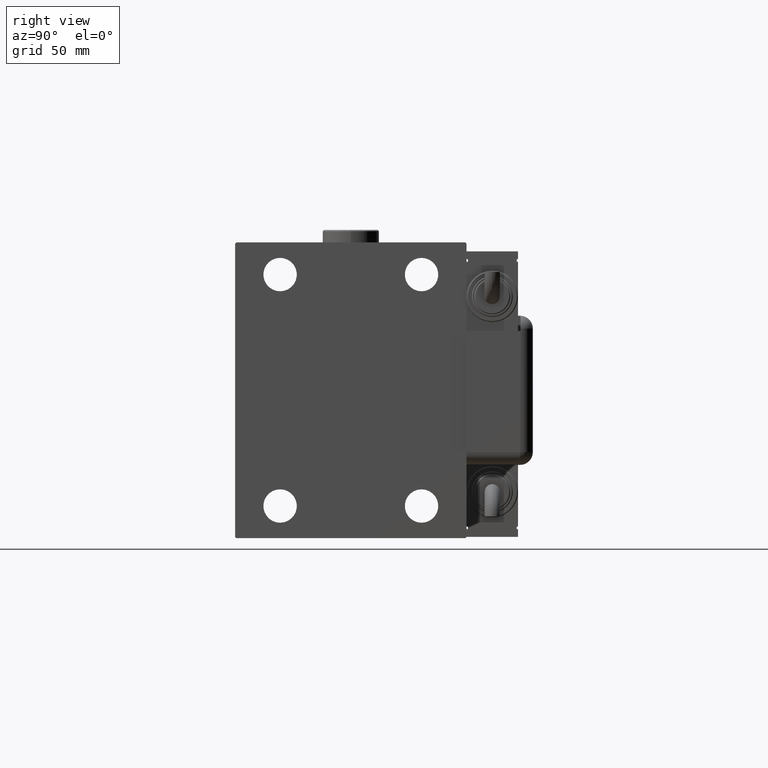
[diagram: clean part render]
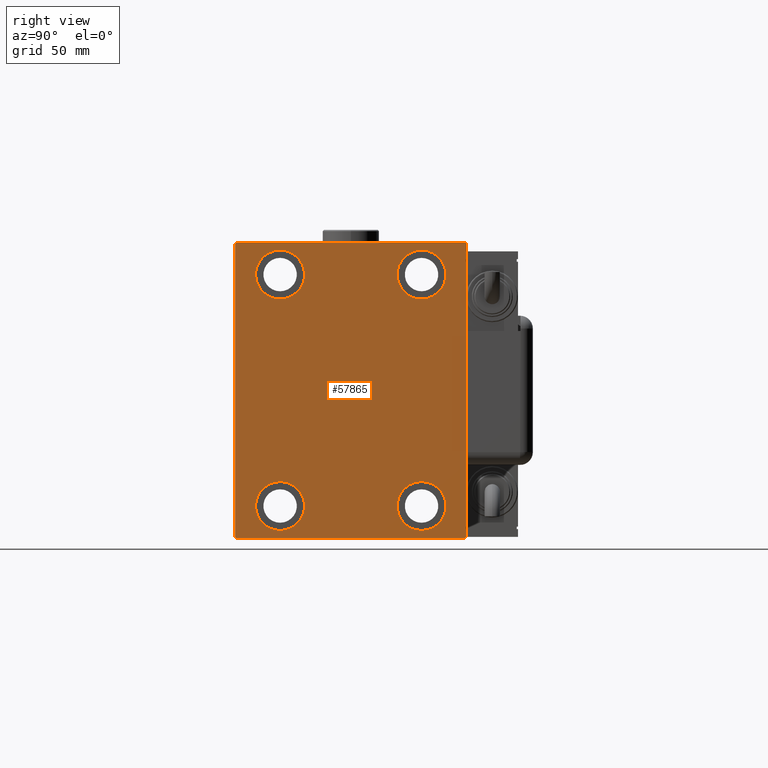
[diagram: same view with one face highlighted and labeled with its STEP entity id]
A machine part, right view. The second image highlights one B-rep face of the part: STEP entity #57865.
In plain terms, the highlighted planar face has unit normal (1, 0, 0).
Its self-contained STEP definition (entity closure, byte-faithful):
#260 = DIRECTION ( 'NONE',  ( 0.000000000000000000, 0.000000000000000000, 1.000000000000000000 ) ) ;
#656 = CARTESIAN_POINT ( 'NONE',  ( 178.0000000000000000, 45.00000000000001421, -57.00000000000003553 ) ) ;
#711 = FACE_OUTER_BOUND ( 'NONE', #30384, .T. ) ;
#1266 = CARTESIAN_POINT ( 'NONE',  ( 178.0000000000000000, 27.50000000000001066, 45.00000000000000711 ) ) ;
#2036 = DIRECTION ( 'NONE',  ( -1.000000000000000000, -0.000000000000000000, -0.000000000000000000 ) ) ;
#2708 = ORIENTED_EDGE ( 'NONE', *, *, #47208, .T. ) ;
#2835 = VERTEX_POINT ( 'NONE', #656 ) ;
#4000 = EDGE_CURVE ( 'NONE', #23223, #25898, #32731, .T. ) ;
#4044 = ORIENTED_EDGE ( 'NONE', *, *, #57947, .T. ) ;
#4123 = ORIENTED_EDGE ( 'NONE', *, *, #23452, .T. ) ;
#4147 = CARTESIAN_POINT ( 'NONE',  ( 178.0000000000000000, -27.49999999999998934, 35.50000000000000711 ) ) ;
#4733 = VECTOR ( 'NONE', #50109, 1000.000000000000000 ) ;
#5846 = CIRCLE ( 'NONE', #13742, 9.500000000000001776 ) ;
#6049 = CARTESIAN_POINT ( 'NONE',  ( 178.0000000000000000, -45.00000000000000000, 56.99999999999999289 ) ) ;
#6058 = CARTESIAN_POINT ( 'NONE',  ( 178.0000000000000000, 27.49999999999998934, -35.49999999999998579 ) ) ;
#6261 = DIRECTION ( 'NONE',  ( 0.000000000000000000, 0.000000000000000000, 1.000000000000000000 ) ) ;
#6582 = EDGE_CURVE ( 'NONE', #22025, #39032, #49599, .T. ) ;
#7268 = VECTOR ( 'NONE', #43203, 1000.000000000000000 ) ;
#7783 = CARTESIAN_POINT ( 'NONE',  ( 178.0000000000000000, -45.00000000000000000, 57.49999999999999289 ) ) ;
#7942 = LINE ( 'NONE', #21804, #24009 ) ;
#8184 = CARTESIAN_POINT ( 'NONE',  ( 178.0000000000000000, 44.50000000000002842, 57.50000000000000711 ) ) ;
#9099 = PLANE ( 'NONE',  #39020 ) ;
#9502 = DIRECTION ( 'NONE',  ( -1.000000000000000000, -0.000000000000000000, -0.000000000000000000 ) ) ;
#9863 = DIRECTION ( 'NONE',  ( 0.000000000000000000, 0.000000000000000000, 1.000000000000000000 ) ) ;
#9902 = CARTESIAN_POINT ( 'NONE',  ( 178.0000000000000000, 27.49999999999998934, -54.49999999999998579 ) ) ;
#10089 = EDGE_CURVE ( 'NONE', #41421, #17756, #59471, .T. ) ;
#10334 = ORIENTED_EDGE ( 'NONE', *, *, #60239, .T. ) ;
#11249 = CARTESIAN_POINT ( 'NONE',  ( 178.0000000000000000, 27.50000000000001066, 54.50000000000000711 ) ) ;
#11584 = EDGE_CURVE ( 'NONE', #48076, #16856, #48754, .T. ) ;
#11617 = DIRECTION ( 'NONE',  ( 0.000000000000000000, 0.000000000000000000, 1.000000000000000000 ) ) ;
#13742 = AXIS2_PLACEMENT_3D ( 'NONE', #32948, #9502, #28305 ) ;
#14906 = FACE_BOUND ( 'NONE', #60881, .T. ) ;
#15336 = AXIS2_PLACEMENT_3D ( 'NONE', #19831, #15514, #6261 ) ;
#15498 = CARTESIAN_POINT ( 'NONE',  ( 178.0000000000000000, 27.50000000000001066, 35.50000000000000711 ) ) ;
#15514 = DIRECTION ( 'NONE',  ( -1.000000000000000000, -0.000000000000000000, -0.000000000000000000 ) ) ;
#15692 = CARTESIAN_POINT ( 'NONE',  ( 178.0000000000000000, 50.99999999999877787, 51.00000000000160583 ) ) ;
#15888 = VERTEX_POINT ( 'NONE', #23325 ) ;
#16209 = ORIENTED_EDGE ( 'NONE', *, *, #59528, .T. ) ;
#16856 = VERTEX_POINT ( 'NONE', #8184 ) ;
#17756 = VERTEX_POINT ( 'NONE', #6058 ) ;
#18035 = VERTEX_POINT ( 'NONE', #47629 ) ;
#18335 = FACE_BOUND ( 'NONE', #23863, .T. ) ;
#18942 = FACE_BOUND ( 'NONE', #22950, .T. ) ;
#19189 = EDGE_CURVE ( 'NONE', #48297, #49744, #36486, .T. ) ;
#19785 = DIRECTION ( 'NONE',  ( 0.000000000000000000, 0.000000000000000000, 1.000000000000000000 ) ) ;
#19831 = CARTESIAN_POINT ( 'NONE',  ( 178.0000000000000000, 27.49999999999998934, -44.99999999999998579 ) ) ;
#21121 = CIRCLE ( 'NONE', #45782, 9.500000000000001776 ) ;
#21804 = CARTESIAN_POINT ( 'NONE',  ( 178.0000000000000000, -50.99999999999877787, -51.00000000000160583 ) ) ;
#21861 = AXIS2_PLACEMENT_3D ( 'NONE', #40391, #36054, #45030 ) ;
#21949 = AXIS2_PLACEMENT_3D ( 'NONE', #1266, #34000, #19785 ) ;
#22025 = VERTEX_POINT ( 'NONE', #15498 ) ;
#22497 = LINE ( 'NONE', #55601, #27284 ) ;
#22950 = EDGE_LOOP ( 'NONE', ( #47498, #41402 ) ) ;
#23223 = VERTEX_POINT ( 'NONE', #4147 ) ;
#23325 = CARTESIAN_POINT ( 'NONE',  ( 178.0000000000000000, -44.49999999999997158, 57.49999999999999289 ) ) ;
#23452 = EDGE_CURVE ( 'NONE', #25898, #23223, #50046, .T. ) ;
#23863 = EDGE_LOOP ( 'NONE', ( #59420, #46494 ) ) ;
#24009 = VECTOR ( 'NONE', #50569, 1000.000000000000000 ) ;
#24713 = CARTESIAN_POINT ( 'NONE',  ( 178.0000000000000000, -45.00000000000000000, -57.00000000000006395 ) ) ;
#25244 = EDGE_CURVE ( 'NONE', #44272, #31165, #26649, .T. ) ;
#25898 = VERTEX_POINT ( 'NONE', #47809 ) ;
#26377 = CARTESIAN_POINT ( 'NONE',  ( 178.0000000000000000, 45.00000000000001421, -57.50000000000000711 ) ) ;
#26649 = LINE ( 'NONE', #60367, #27250 ) ;
#27250 = VECTOR ( 'NONE', #27580, 1000.000000000000000 ) ;
#27284 = VECTOR ( 'NONE', #50963, 1000.000000000000114 ) ;
#27580 = DIRECTION ( 'NONE',  ( 0.000000000000000000, 1.000000000000000000, 0.000000000000000000 ) ) ;
#27898 = DIRECTION ( 'NONE',  ( 1.000000000000000000, 0.000000000000000000, 0.000000000000000000 ) ) ;
#28305 = DIRECTION ( 'NONE',  ( 0.000000000000000000, 0.000000000000000000, 1.000000000000000000 ) ) ;
#28503 = CARTESIAN_POINT ( 'NONE',  ( 178.0000000000000000, 0.000000000000000000, 0.000000000000000000 ) ) ;
#28979 = CARTESIAN_POINT ( 'NONE',  ( 178.0000000000000000, 27.49999999999998934, -44.99999999999998579 ) ) ;
#29204 = ORIENTED_EDGE ( 'NONE', *, *, #4000, .T. ) ;
#30049 = EDGE_CURVE ( 'NONE', #46828, #18035, #42266, .T. ) ;
#30384 = EDGE_LOOP ( 'NONE', ( #60350, #16209, #37978, #2708, #35167, #43232, #10334, #51799 ) ) ;
#31165 = VERTEX_POINT ( 'NONE', #41321 ) ;
#31338 = CARTESIAN_POINT ( 'NONE',  ( 178.0000000000000000, -44.50000000000002842, -57.50000000000000711 ) ) ;
#32464 = EDGE_LOOP ( 'NONE', ( #39842, #4044 ) ) ;
#32731 = CIRCLE ( 'NONE', #21861, 9.500000000000001776 ) ;
#32801 = EDGE_CURVE ( 'NONE', #39032, #22025, #5846, .T. ) ;
#32948 = CARTESIAN_POINT ( 'NONE',  ( 178.0000000000000000, 27.50000000000001066, 45.00000000000000711 ) ) ;
#33021 = DIRECTION ( 'NONE',  ( -1.000000000000000000, -0.000000000000000000, -0.000000000000000000 ) ) ;
#33321 = CARTESIAN_POINT ( 'NONE',  ( 178.0000000000000000, -27.50000000000000000, -44.99999999999998579 ) ) ;
#33352 = AXIS2_PLACEMENT_3D ( 'NONE', #53940, #2036, #11617 ) ;
#34000 = DIRECTION ( 'NONE',  ( -1.000000000000000000, -0.000000000000000000, -0.000000000000000000 ) ) ;
#34060 = LINE ( 'NONE', #38100, #56615 ) ;
#35059 = DIRECTION ( 'NONE',  ( -1.000000000000000000, -0.000000000000000000, -0.000000000000000000 ) ) ;
#35167 = ORIENTED_EDGE ( 'NONE', *, *, #25244, .T. ) ;
#36054 = DIRECTION ( 'NONE',  ( -1.000000000000000000, -0.000000000000000000, -0.000000000000000000 ) ) ;
#36486 = LINE ( 'NONE', #7783, #4733 ) ;
#37182 = VECTOR ( 'NONE', #45244, 1000.000000000000000 ) ;
#37978 = ORIENTED_EDGE ( 'NONE', *, *, #19189, .T. ) ;
#38060 = CIRCLE ( 'NONE', #15336, 9.500000000000001776 ) ;
#38100 = CARTESIAN_POINT ( 'NONE',  ( 178.0000000000000000, 51.00000000000127187, -50.99999999999844391 ) ) ;
#39020 = AXIS2_PLACEMENT_3D ( 'NONE', #28503, #27898, #47376 ) ;
#39032 = VERTEX_POINT ( 'NONE', #11249 ) ;
#39842 = ORIENTED_EDGE ( 'NONE', *, *, #10089, .T. ) ;
#40391 = CARTESIAN_POINT ( 'NONE',  ( 178.0000000000000000, -27.49999999999998934, 45.00000000000000711 ) ) ;
#41321 = CARTESIAN_POINT ( 'NONE',  ( 178.0000000000000000, 44.50000000000004263, -57.50000000000000711 ) ) ;
#41402 = ORIENTED_EDGE ( 'NONE', *, *, #32801, .T. ) ;
#41421 = VERTEX_POINT ( 'NONE', #9902 ) ;
#42266 = CIRCLE ( 'NONE', #33352, 9.500000000000001776 ) ;
#43203 = DIRECTION ( 'NONE',  ( -0.000000000000000000, -0.7071067811865671127, 0.7071067811865279218 ) ) ;
#43232 = ORIENTED_EDGE ( 'NONE', *, *, #47520, .T. ) ;
#43505 = DIRECTION ( 'NONE',  ( 0.000000000000000000, 0.000000000000000000, 1.000000000000000000 ) ) ;
#44272 = VERTEX_POINT ( 'NONE', #31338 ) ;
#44532 = CARTESIAN_POINT ( 'NONE',  ( 178.0000000000000000, -27.50000000000000000, -35.49999999999998579 ) ) ;
#45030 = DIRECTION ( 'NONE',  ( 0.000000000000000000, 0.000000000000000000, 1.000000000000000000 ) ) ;
#45244 = DIRECTION ( 'NONE',  ( 0.000000000000000000, -1.206764157201257045E-16, 1.000000000000000000 ) ) ;
#45647 = AXIS2_PLACEMENT_3D ( 'NONE', #28979, #33021, #43505 ) ;
#45782 = AXIS2_PLACEMENT_3D ( 'NONE', #33321, #35059, #9863 ) ;
#46494 = ORIENTED_EDGE ( 'NONE', *, *, #30049, .T. ) ;
#46828 = VERTEX_POINT ( 'NONE', #44532 ) ;
#47095 = AXIS2_PLACEMENT_3D ( 'NONE', #47219, #56197, #260 ) ;
#47208 = EDGE_CURVE ( 'NONE', #49744, #44272, #7942, .T. ) ;
#47219 = CARTESIAN_POINT ( 'NONE',  ( 178.0000000000000000, -27.49999999999998934, 45.00000000000000711 ) ) ;
#47376 = DIRECTION ( 'NONE',  ( 0.000000000000000000, 0.000000000000000000, -1.000000000000000000 ) ) ;
#47498 = ORIENTED_EDGE ( 'NONE', *, *, #6582, .T. ) ;
#47520 = EDGE_CURVE ( 'NONE', #31165, #2835, #34060, .T. ) ;
#47629 = CARTESIAN_POINT ( 'NONE',  ( 178.0000000000000000, -27.50000000000000000, -54.49999999999998579 ) ) ;
#47809 = CARTESIAN_POINT ( 'NONE',  ( 178.0000000000000000, -27.49999999999998934, 54.50000000000000711 ) ) ;
#48076 = VERTEX_POINT ( 'NONE', #52776 ) ;
#48278 = DIRECTION ( 'NONE',  ( -0.000000000000000000, 0.7071067811865279218, 0.7071067811865671127 ) ) ;
#48297 = VERTEX_POINT ( 'NONE', #6049 ) ;
#48754 = LINE ( 'NONE', #15692, #7268 ) ;
#49159 = EDGE_CURVE ( 'NONE', #18035, #46828, #21121, .T. ) ;
#49476 = LINE ( 'NONE', #53805, #58689 ) ;
#49599 = CIRCLE ( 'NONE', #21949, 9.500000000000001776 ) ;
#49744 = VERTEX_POINT ( 'NONE', #24713 ) ;
#50046 = CIRCLE ( 'NONE', #47095, 9.500000000000001776 ) ;
#50109 = DIRECTION ( 'NONE',  ( 0.000000000000000000, 0.000000000000000000, -1.000000000000000000 ) ) ;
#50569 = DIRECTION ( 'NONE',  ( -0.000000000000000000, 0.7071067811865671127, -0.7071067811865279218 ) ) ;
#50831 = EDGE_CURVE ( 'NONE', #16856, #15888, #49476, .T. ) ;
#50963 = DIRECTION ( 'NONE',  ( 0.000000000000000000, -0.7071067811865474617, -0.7071067811865474617 ) ) ;
#51799 = ORIENTED_EDGE ( 'NONE', *, *, #11584, .T. ) ;
#52022 = FACE_BOUND ( 'NONE', #32464, .T. ) ;
#52776 = CARTESIAN_POINT ( 'NONE',  ( 178.0000000000000000, 45.00000000000000000, 57.00000000000003553 ) ) ;
#53805 = CARTESIAN_POINT ( 'NONE',  ( 178.0000000000000000, 45.00000000000000000, 57.50000000000000711 ) ) ;
#53940 = CARTESIAN_POINT ( 'NONE',  ( 178.0000000000000000, -27.50000000000000000, -44.99999999999998579 ) ) ;
#55601 = CARTESIAN_POINT ( 'NONE',  ( 178.0000000000000000, -51.00000000000000000, 51.00000000000000000 ) ) ;
#56197 = DIRECTION ( 'NONE',  ( -1.000000000000000000, -0.000000000000000000, -0.000000000000000000 ) ) ;
#56615 = VECTOR ( 'NONE', #48278, 1000.000000000000000 ) ;
#57865 = ADVANCED_FACE ( 'NONE', ( #52022, #14906, #18942, #18335, #711 ), #9099, .T. ) ;
#57947 = EDGE_CURVE ( 'NONE', #17756, #41421, #38060, .T. ) ;
#58451 = DIRECTION ( 'NONE',  ( 0.000000000000000000, -1.000000000000000000, -1.541976423090495387E-16 ) ) ;
#58689 = VECTOR ( 'NONE', #58451, 1000.000000000000000 ) ;
#58877 = LINE ( 'NONE', #26377, #37182 ) ;
#59420 = ORIENTED_EDGE ( 'NONE', *, *, #49159, .T. ) ;
#59471 = CIRCLE ( 'NONE', #45647, 9.500000000000001776 ) ;
#59528 = EDGE_CURVE ( 'NONE', #15888, #48297, #22497, .T. ) ;
#60239 = EDGE_CURVE ( 'NONE', #2835, #48076, #58877, .T. ) ;
#60350 = ORIENTED_EDGE ( 'NONE', *, *, #50831, .T. ) ;
#60367 = CARTESIAN_POINT ( 'NONE',  ( 178.0000000000000000, -45.00000000000000000, -57.50000000000000711 ) ) ;
#60881 = EDGE_LOOP ( 'NONE', ( #29204, #4123 ) ) ;